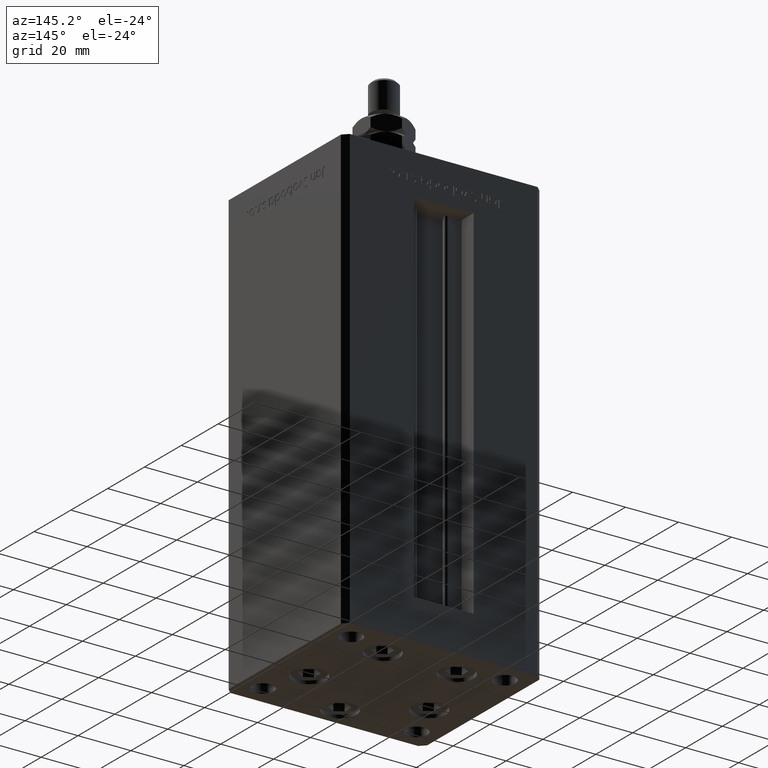
[diagram: clean part render]
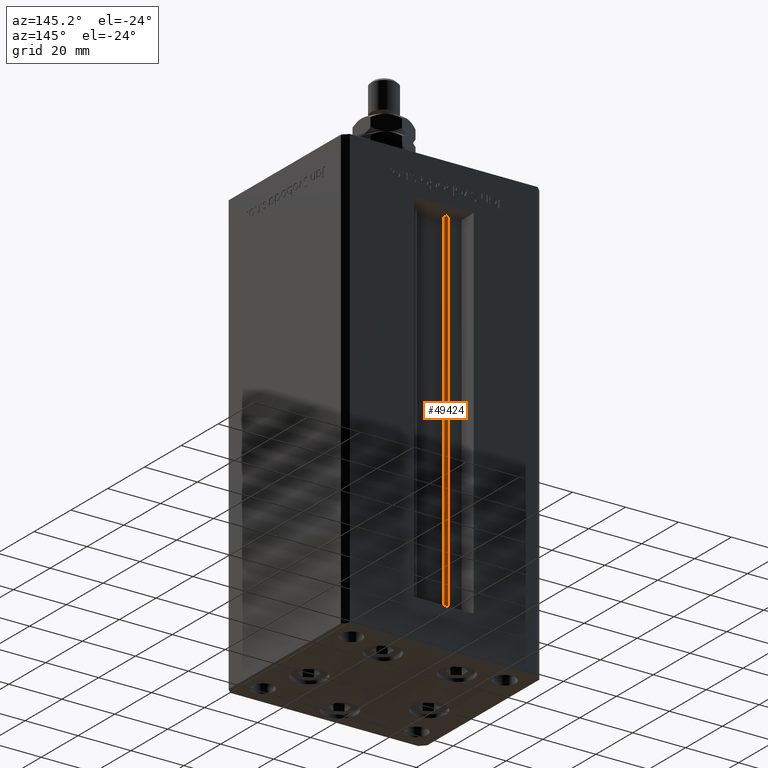
[diagram: same view with one face highlighted and labeled with its STEP entity id]
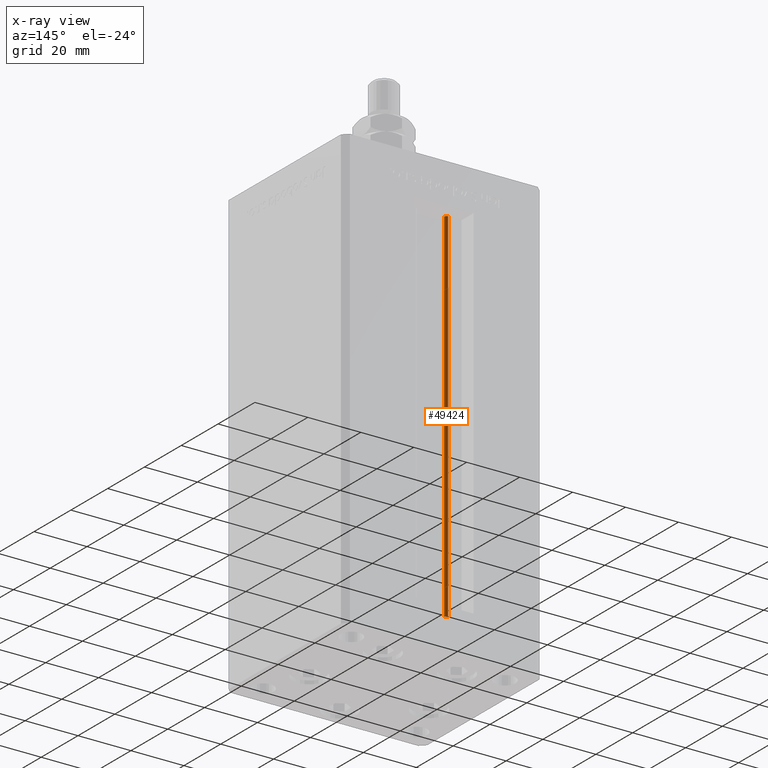
[diagram: x-ray of the same camera — body ghosted, the highlighted face saturated]
A machine part, auxiliary view. The second image highlights one B-rep face of the part: STEP entity #49424.
The next image is the same camera in x-ray: the body ghosted, the highlighted face saturated — about 0% of this face is hidden behind the body in this view.
In plain terms, the highlighted cylindrical surface (edge-blend (fillet) strip) has radius 0.9333 mm, axis along (0, 0, 1).
Its self-contained STEP definition (entity closure, byte-faithful):
#1907 = DIRECTION ( 'NONE',  ( -0.000000000000000000, -0.000000000000000000, 1.000000000000000000 ) ) ;
#2432 = DIRECTION ( 'NONE',  ( 1.000000000000000000, 0.000000000000000000, 0.000000000000000000 ) ) ;
#2640 = DIRECTION ( 'NONE',  ( 1.000000000000000000, 0.000000000000000000, 0.000000000000000000 ) ) ;
#4295 = VECTOR ( 'NONE', #31778, 1000.000000000000000 ) ;
#5710 = CARTESIAN_POINT ( 'NONE',  ( -5.250000000000000000, 25.06666666666599141, 136.0000000000000000 ) ) ;
#5977 = CYLINDRICAL_SURFACE ( 'NONE', #26779, 0.9333333333340008142 ) ;
#7351 = CARTESIAN_POINT ( 'NONE',  ( -6.183333333334001480, 25.06666666666599141, 136.0000000000000000 ) ) ;
#15015 = VERTEX_POINT ( 'NONE', #16356 ) ;
#15414 = EDGE_CURVE ( 'NONE', #17664, #39726, #30613, .T. ) ;
#16025 = DIRECTION ( 'NONE',  ( 0.000000000000000000, 0.000000000000000000, -1.000000000000000000 ) ) ;
#16346 = VECTOR ( 'NONE', #48087, 1000.000000000000000 ) ;
#16356 = CARTESIAN_POINT ( 'NONE',  ( -6.183333333334001480, 25.99999999999999289, 0.000000000000000000 ) ) ;
#17664 = VERTEX_POINT ( 'NONE', #34756 ) ;
#18359 = ORIENTED_EDGE ( 'NONE', *, *, #15414, .T. ) ;
#19277 = LINE ( 'NONE', #35869, #4295 ) ;
#19595 = EDGE_LOOP ( 'NONE', ( #53103, #44505, #22846, #18359 ) ) ;
#22564 = CARTESIAN_POINT ( 'NONE',  ( -6.183333333334001480, 25.06666666666599141, 0.000000000000000000 ) ) ;
#22831 = EDGE_CURVE ( 'NONE', #15015, #39356, #30807, .T. ) ;
#22846 = ORIENTED_EDGE ( 'NONE', *, *, #40977, .T. ) ;
#26779 = AXIS2_PLACEMENT_3D ( 'NONE', #22564, #1907, #2432 ) ;
#29855 = LINE ( 'NONE', #46458, #16346 ) ;
#30613 = CIRCLE ( 'NONE', #48834, 0.9333333333340008142 ) ;
#30807 = CIRCLE ( 'NONE', #35162, 0.9333333333340008142 ) ;
#31436 = DIRECTION ( 'NONE',  ( -0.000000000000000000, -0.000000000000000000, -1.000000000000000000 ) ) ;
#31778 = DIRECTION ( 'NONE',  ( -0.000000000000000000, -0.000000000000000000, 1.000000000000000000 ) ) ;
#32234 = CARTESIAN_POINT ( 'NONE',  ( -6.183333333334001480, 25.06666666666599141, 0.000000000000000000 ) ) ;
#34756 = CARTESIAN_POINT ( 'NONE',  ( -6.183333333334001480, 25.99999999999999289, 136.0000000000000000 ) ) ;
#35162 = AXIS2_PLACEMENT_3D ( 'NONE', #32234, #31436, #2640 ) ;
#35869 = CARTESIAN_POINT ( 'NONE',  ( -6.183333333334001480, 25.99999999999999289, 0.000000000000000000 ) ) ;
#36476 = EDGE_CURVE ( 'NONE', #39356, #39726, #29855, .T. ) ;
#37146 = CARTESIAN_POINT ( 'NONE',  ( -5.250000000000000000, 25.06666666666599141, 0.000000000000000000 ) ) ;
#37229 = DIRECTION ( 'NONE',  ( 1.000000000000000000, 0.000000000000000000, 0.000000000000000000 ) ) ;
#39356 = VERTEX_POINT ( 'NONE', #37146 ) ;
#39726 = VERTEX_POINT ( 'NONE', #5710 ) ;
#40977 = EDGE_CURVE ( 'NONE', #15015, #17664, #19277, .T. ) ;
#44505 = ORIENTED_EDGE ( 'NONE', *, *, #22831, .F. ) ;
#46458 = CARTESIAN_POINT ( 'NONE',  ( -5.250000000000000000, 25.06666666666599141, 0.000000000000000000 ) ) ;
#47311 = FACE_OUTER_BOUND ( 'NONE', #19595, .T. ) ;
#48087 = DIRECTION ( 'NONE',  ( -0.000000000000000000, -0.000000000000000000, 1.000000000000000000 ) ) ;
#48834 = AXIS2_PLACEMENT_3D ( 'NONE', #7351, #16025, #37229 ) ;
#49424 = ADVANCED_FACE ( 'NONE', ( #47311 ), #5977, .T. ) ;
#53103 = ORIENTED_EDGE ( 'NONE', *, *, #36476, .F. ) ;